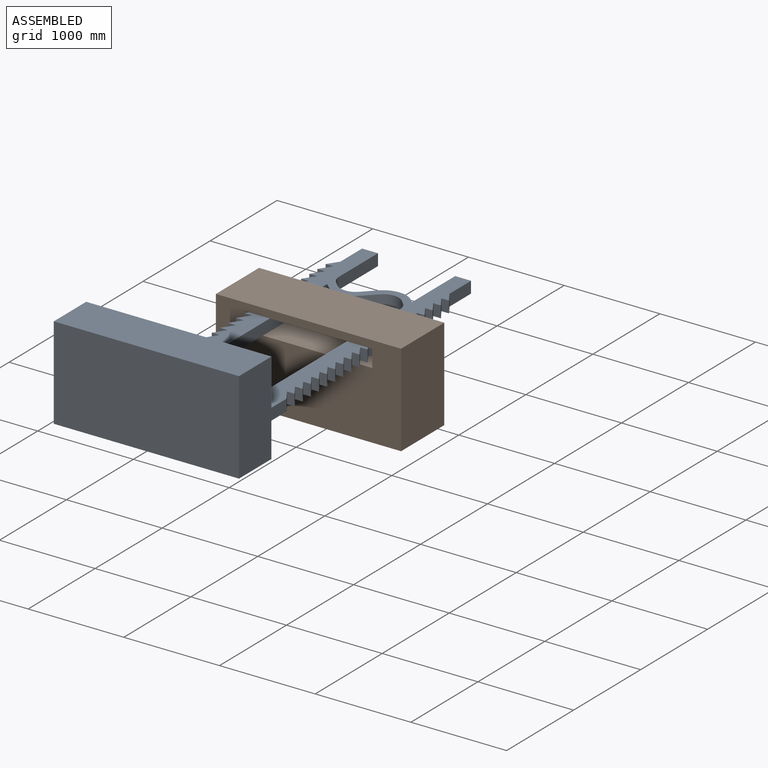
[diagram: assembled view]
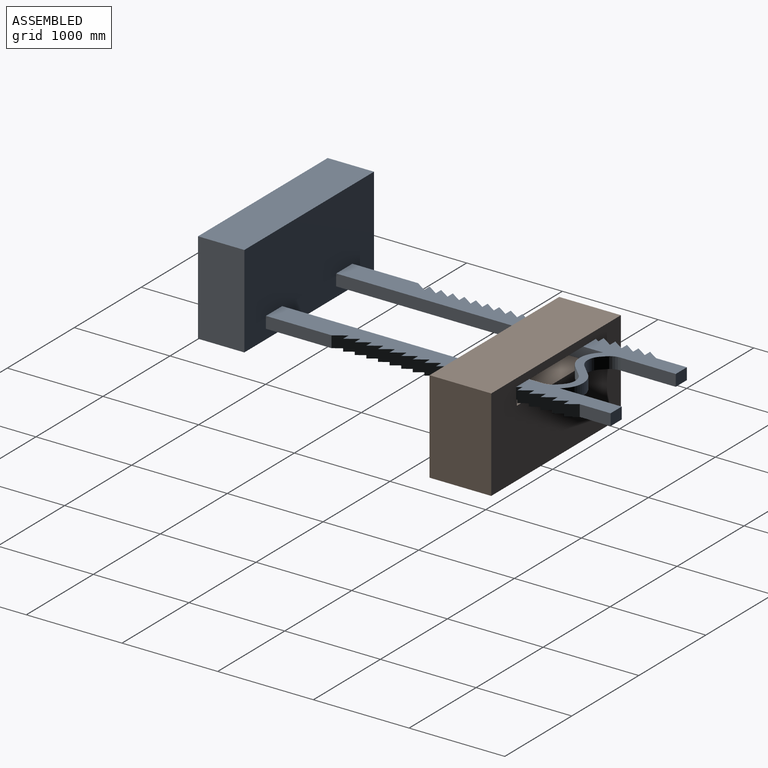
[diagram: assembled view, second angle]
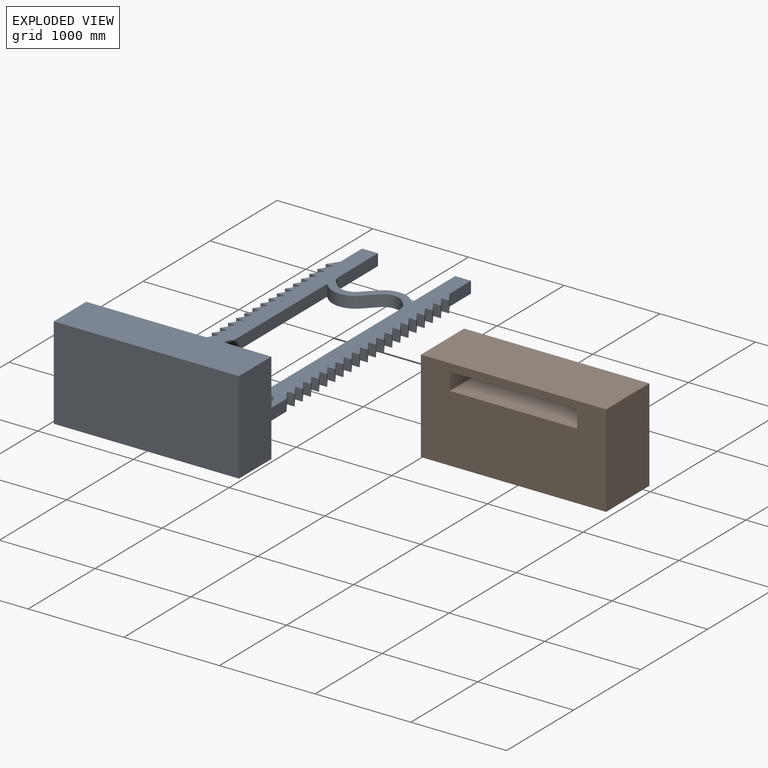
[diagram: exploded view]
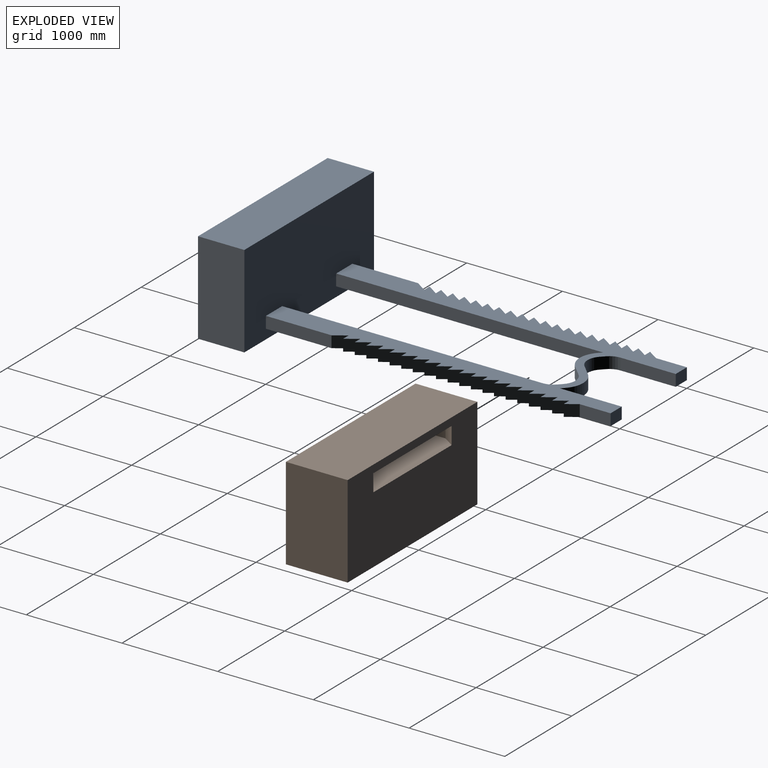
[diagram: exploded view, second angle]
ASSEMBLY  parts=2 mates=2
PART A: 112 faces, bbox 1935.5x4032.3x967.7 mm
  f0: plane 1935.48x483.87mm, normal (0,0,1), area 936520.7mm2, adj f102,f104,f105,f106
  f1: plane 578.35x121.29mm, normal (1,0,0), area 70148.3mm2, adj f11,f101,f109,f111
  f2: plane 645.16x121.29mm, normal (-1,0,0), area 78251.5mm2, adj f7,f101,f110,f111
  f3: plane 2789.17x121.29mm, normal (1,0,0), area 338298.7mm2, adj f10,f101,f105,f111
  f4: plane 2722.36x121.29mm, normal (-1,0,0), area 330195.5mm2, adj f13,f101,f105,f111
  f5: plane 121.29x40.32mm, normal (0.71,-0.71,0), area 6916.5mm2, adj f11,f12,f101,f111
  f6: plane 121.29x118.1mm, normal (-0.71,-0.71,0), area 20258mm2, adj f12,f101,f107,f111
  f7: plane 121.29x30.54mm, normal (0.71,-0.71,0), area 5238.3mm2, adj f2,f101,f107,f111
  f8: plane 121.29x40.32mm, normal (-0.71,0.71,0), area 6916.5mm2, adj f13,f14,f101,f111
  f9: plane 121.29x118.1mm, normal (0.71,0.71,0), area 20258mm2, adj f14,f101,f108,f111
  f10: plane 121.29x30.54mm, normal (-0.71,0.71,0), area 5238.3mm2, adj f3,f101,f108,f111
  f11: cylinder r=161.29mm len=121.29mm, axis (0,0,-1), area 15364.6mm2, adj f1,f5,f101,f111
  f12: cylinder r=161.29mm len=228.1mm, axis (0,0,-1), area 30729.3mm2, adj f5,f6,f101,f111
  f13: cylinder r=161.29mm len=121.29mm, axis (0,0,1), area 15364.6mm2, adj f4,f8,f101,f111
  f14: cylinder r=161.29mm len=228.1mm, axis (0,0,-1), area 30729.3mm2, adj f8,f9,f101,f111
  f15: plane 121.29x121.29mm, normal (0.83,-0.55,0), area 17666.3mm2, adj f16,f93,f101,f111
  f16: plane 121.29x80.65mm, normal (0,1,0), area 9781.4mm2, adj f15,f94,f101,f111
  f17: plane 121.29x121.29mm, normal (0.83,-0.55,0), area 17666.3mm2, adj f18,f89,f101,f111
  f18: plane 121.29x80.65mm, normal (0,1,0), area 9781.4mm2, adj f17,f90,f101,f111
  f19: plane 121.29x121.29mm, normal (0.83,-0.55,0), area 17666.3mm2, adj f20,f85,f101,f111
  f20: plane 121.29x80.65mm, normal (0,1,0), area 9781.4mm2, adj f19,f86,f101,f111
  f21: plane 121.29x121.29mm, normal (0.83,-0.55,0), area 17666.3mm2, adj f22,f81,f101,f111
  f22: plane 121.29x80.65mm, normal (0,1,0), area 9781.4mm2, adj f21,f82,f101,f111
  f23: plane 121.29x121.29mm, normal (-0.83,-0.55,0), area 17666.3mm2, adj f24,f76,f101,f111
  f24: plane 121.29x80.65mm, normal (0,1,0), area 9781.4mm2, adj f23,f55,f101,f111
  f25: plane 121.29x121.29mm, normal (-0.83,-0.55,0), area 17666.3mm2, adj f26,f56,f101,f111
  f26: plane 121.29x80.65mm, normal (0,1,0), area 9781.4mm2, adj f25,f57,f101,f111
  f27: plane 121.29x121.29mm, normal (-0.83,-0.55,0), area 17666.3mm2, adj f28,f58,f101,f111
  f28: plane 121.29x80.65mm, normal (0,1,0), area 9781.4mm2, adj f27,f59,f101,f111
  f29: plane 121.29x121.29mm, normal (-0.83,-0.55,0), area 17666.3mm2, adj f30,f60,f101,f111
  f30: plane 121.29x80.65mm, normal (0,1,0), area 9781.4mm2, adj f29,f61,f101,f111
  f31: plane 121.29x121.29mm, normal (-0.83,-0.55,0), area 17666.3mm2, adj f32,f62,f101,f111
  f32: plane 121.29x80.65mm, normal (0,1,0), area 9781.4mm2, adj f31,f63,f101,f111
  f33: plane 121.29x121.29mm, normal (-0.83,-0.55,0), area 17666.3mm2, adj f34,f64,f101,f111
  f34: plane 121.29x80.65mm, normal (0,1,0), area 9781.4mm2, adj f33,f65,f101,f111
  f35: plane 121.29x121.29mm, normal (-0.83,-0.55,0), area 17666.3mm2, adj f36,f66,f101,f111
  f36: plane 121.29x80.65mm, normal (0,1,0), area 9781.4mm2, adj f35,f67,f101,f111
  f37: plane 121.29x121.29mm, normal (-0.83,-0.55,0), area 17666.3mm2, adj f38,f68,f101,f111
  f38: plane 121.29x80.65mm, normal (0,1,0), area 9781.4mm2, adj f37,f69,f101,f111
  f39: plane 121.29x121.29mm, normal (-0.83,-0.55,0), area 17666.3mm2, adj f40,f70,f101,f111
  f40: plane 121.29x80.65mm, normal (0,1,0), area 9781.4mm2, adj f39,f71,f101,f111
  f41: plane 121.29x121.29mm, normal (-0.83,-0.55,0), area 17666.3mm2, adj f42,f72,f101,f111
  f42: plane 121.29x80.65mm, normal (0,1,0), area 9781.4mm2, adj f41,f77,f101,f111
  f43: plane 121.29x121.29mm, normal (0.83,-0.55,0), area 17666.3mm2, adj f44,f74,f101,f111
  f44: plane 121.29x80.65mm, normal (0,1,0), area 9781.4mm2, adj f43,f78,f101,f111
  f45: plane 121.29x121.29mm, normal (0.83,-0.55,0), area 17666.3mm2, adj f46,f79,f101,f111
  f46: plane 121.29x80.65mm, normal (0,1,0), area 9781.4mm2, adj f45,f80,f101,f111
  f47: plane 121.29x121.29mm, normal (0.83,-0.55,0), area 17666.3mm2, adj f48,f83,f101,f111
  f48: plane 121.29x80.65mm, normal (0,1,0), area 9781.4mm2, adj f47,f84,f101,f111
  f49: plane 121.29x121.29mm, normal (0.83,-0.55,0), area 17666.3mm2, adj f50,f87,f101,f111
  f50: plane 121.29x80.65mm, normal (0,1,0), area 9781.4mm2, adj f49,f88,f101,f111
  f51: plane 121.29x121.29mm, normal (0.83,-0.55,0), area 17666.3mm2, adj f52,f91,f101,f111
  f52: plane 121.29x80.65mm, normal (0,1,0), area 9781.4mm2, adj f51,f92,f101,f111
  f53: plane 121.29x121.29mm, normal (0.83,-0.55,0), area 17666.3mm2, adj f54,f95,f101,f111
  f54: plane 121.29x80.65mm, normal (0,1,0), area 9781.4mm2, adj f53,f96,f101,f111
  f55: plane 121.29x121.29mm, normal (-0.83,-0.55,0), area 17666.3mm2, adj f24,f56,f101,f111
  f56: plane 121.29x80.65mm, normal (0,1,0), area 9781.4mm2, adj f25,f55,f101,f111
  f57: plane 121.29x121.29mm, normal (-0.83,-0.55,0), area 17666.3mm2, adj f26,f58,f101,f111
  f58: plane 121.29x80.65mm, normal (0,1,0), area 9781.4mm2, adj f27,f57,f101,f111
  f59: plane 121.29x121.29mm, normal (-0.83,-0.55,0), area 17666.3mm2, adj f28,f60,f101,f111
  f60: plane 121.29x80.65mm, normal (0,1,0), area 9781.4mm2, adj f29,f59,f101,f111
  f61: plane 121.29x121.29mm, normal (-0.83,-0.55,0), area 17666.3mm2, adj f30,f62,f101,f111
  f62: plane 121.29x80.65mm, normal (0,1,0), area 9781.4mm2, adj f31,f61,f101,f111
  f63: plane 121.29x121.29mm, normal (-0.83,-0.55,0), area 17666.3mm2, adj f32,f64,f101,f111
  f64: plane 121.29x80.65mm, normal (0,1,0), area 9781.4mm2, adj f33,f63,f101,f111
  f65: plane 121.29x121.29mm, normal (-0.83,-0.55,0), area 17666.3mm2, adj f34,f66,f101,f111
  f66: plane 121.29x80.65mm, normal (0,1,0), area 9781.4mm2, adj f35,f65,f101,f111
  f67: plane 121.29x121.29mm, normal (-0.83,-0.55,0), area 17666.3mm2, adj f36,f68,f101,f111
  f68: plane 121.29x80.65mm, normal (0,1,0), area 9781.4mm2, adj f37,f67,f101,f111
  f69: plane 121.29x121.29mm, normal (-0.83,-0.55,0), area 17666.3mm2, adj f38,f70,f101,f111
  f70: plane 121.29x80.65mm, normal (0,1,0), area 9781.4mm2, adj f39,f69,f101,f111
  f71: plane 121.29x121.29mm, normal (-0.83,-0.55,0), area 17666.3mm2, adj f40,f72,f101,f111
  f72: plane 121.29x80.65mm, normal (0,1,0), area 9781.4mm2, adj f41,f71,f101,f111
  f73: plane 121.29x121.29mm, normal (0.83,-0.55,0), area 17666.3mm2, adj f74,f100,f101,f111
  f74: plane 121.29x80.65mm, normal (0,1,0), area 9781.4mm2, adj f43,f73,f101,f111
  f75: plane 121.29x121.29mm, normal (-0.83,-0.55,0), area 17666.3mm2, adj f76,f99,f101,f111
  f76: plane 121.29x80.65mm, normal (0,1,0), area 9781.4mm2, adj f23,f75,f101,f111
  f77: plane 121.29x114.2mm, normal (-0.83,-0.55,0), area 16633.4mm2, adj f42,f97,f101,f111
  f78: plane 121.29x121.29mm, normal (0.83,-0.55,0), area 17666.3mm2, adj f44,f79,f101,f111
  f79: plane 121.29x80.65mm, normal (0,1,0), area 9781.4mm2, adj f45,f78,f101,f111
  f80: plane 121.29x121.29mm, normal (0.83,-0.55,0), area 17666.3mm2, adj f46,f81,f101,f111
  f81: plane 121.29x80.65mm, normal (0,1,0), area 9781.4mm2, adj f21,f80,f101,f111
  f82: plane 121.29x121.29mm, normal (0.83,-0.55,0), area 17666.3mm2, adj f22,f83,f101,f111
  f83: plane 121.29x80.65mm, normal (0,1,0), area 9781.4mm2, adj f47,f82,f101,f111
  f84: plane 121.29x121.29mm, normal (0.83,-0.55,0), area 17666.3mm2, adj f48,f85,f101,f111
  f85: plane 121.29x80.65mm, normal (0,1,0), area 9781.4mm2, adj f19,f84,f101,f111
  f86: plane 121.29x121.29mm, normal (0.83,-0.55,0), area 17666.3mm2, adj f20,f87,f101,f111
  f87: plane 121.29x80.65mm, normal (0,1,0), area 9781.4mm2, adj f49,f86,f101,f111
  f88: plane 121.29x121.29mm, normal (0.83,-0.55,0), area 17666.3mm2, adj f50,f89,f101,f111
  f89: plane 121.29x80.65mm, normal (0,1,0), area 9781.4mm2, adj f17,f88,f101,f111
  f90: plane 121.29x121.29mm, normal (0.83,-0.55,0), area 17666.3mm2, adj f18,f91,f101,f111
  f91: plane 121.29x80.65mm, normal (0,1,0), area 9781.4mm2, adj f51,f90,f101,f111
  f92: plane 121.29x121.29mm, normal (0.83,-0.55,0), area 17666.3mm2, adj f52,f93,f101,f111
  f93: plane 121.29x80.65mm, normal (0,1,0), area 9781.4mm2, adj f15,f92,f101,f111
  f94: plane 121.29x121.29mm, normal (0.83,-0.55,0), area 17666.3mm2, adj f16,f95,f101,f111
  f95: plane 121.29x80.65mm, normal (0,1,0), area 9781.4mm2, adj f53,f94,f101,f111
  f96: plane 121.29x114.2mm, normal (0.83,-0.55,0), area 16633.4mm2, adj f54,f98,f101,f111
  f97: plane 322.58x121.29mm, normal (-1,0,0), area 39125.8mm2, adj f77,f101,f109,f111
  f98: plane 322.58x121.29mm, normal (1,0,0), area 39125.8mm2, adj f96,f101,f110,f111
  f99: plane 685.8x121.29mm, normal (-1,0,0), area 83180.7mm2, adj f75,f101,f105,f111
  f100: plane 685.8x121.29mm, normal (1,0,0), area 83180.7mm2, adj f73,f101,f105,f111
  f101: plane 3548.38x1290.32mm, normal (0,0,-1), area 1542805.5mm2, adj f1,f2,f3,f4,f5,f6,f7,f8
  f102: plane 967.74x483.87mm, normal (-1,0,0), area 468260.4mm2, adj f0,f103,f105,f106
  f103: plane 1935.48x483.87mm, normal (0,0,-1), area 936520.7mm2, adj f102,f104,f105,f106
  f104: plane 967.74x483.87mm, normal (1,0,0), area 468260.4mm2, adj f0,f103,f105,f106
  f105: plane 1935.48x967.74mm, normal (0,-1,0), area 1814352.8mm2, adj f0,f3,f4,f99,f100,f101,f102,f103
  f106: plane 1935.48x967.74mm, normal (0,1,0), area 1873041.4mm2, adj f0,f102,f103,f104
  f107: cylinder r=241.94mm len=342.15mm, axis (0,0,1), area 46093.9mm2, adj f6,f7,f101,f111
  f108: cylinder r=241.94mm len=342.15mm, axis (0,0,1), area 46093.9mm2, adj f9,f10,f101,f111
  f109: plane 166.01x121.29mm, normal (0,-1,0), area 20134.8mm2, adj f1,f97,f101,f111
  f110: plane 166.01x121.29mm, normal (0,-1,0), area 20134.8mm2, adj f2,f98,f101,f111
  f111: plane 3548.38x1290.32mm, normal (0,0,1), area 1542805.5mm2, adj f1,f2,f3,f4,f5,f6,f7,f8
PART B: 12 faces, bbox 1935.5x645.2x967.7 mm
  f0: plane 1330.32x645.16mm, normal (0,0,-1), area 848487.8mm2, adj f6,f7,f8,f9,f10,f11
  f1: plane 1330.32x645.16mm, normal (0,0,1), area 848487.8mm2, adj f6,f7,f8,f9,f10,f11
  f2: plane 967.74x645.16mm, normal (-1,0,0), area 624347.1mm2, adj f3,f5,f6,f7
  f3: plane 1935.48x645.16mm, normal (0,0,-1), area 1248694.3mm2, adj f2,f4,f6,f7
  f4: plane 967.74x645.16mm, normal (1,0,0), area 624347.1mm2, adj f3,f5,f6,f7
  f5: plane 1935.48x645.16mm, normal (0,0,1), area 1248694.3mm2, adj f2,f4,f6,f7
  f6: plane 1935.48x967.74mm, normal (0,-1,0), area 1661108mm2, adj f0,f1,f2,f3,f4,f5,f10,f11
  f7: plane 1935.48x967.74mm, normal (0,1,0), area 1631867.8mm2, adj f0,f1,f2,f3,f4,f5,f8,f9
  f8: plane 523.87x181.29mm, normal (1,0,0), area 94972.4mm2, adj f0,f1,f7,f10
  f9: plane 523.87x181.29mm, normal (-1,0,0), area 94972.4mm2, adj f0,f1,f7,f11
  f10: plane 181.29x121.29mm, normal (0.83,0.55,0), area 26405.5mm2, adj f0,f1,f6,f8
  f11: plane 181.29x121.29mm, normal (-0.83,0.55,0), area 26405.5mm2, adj f0,f1,f6,f9
PLACE A rot(axis=(1,0,0),180deg) t=(-96.7,-96.49,-15.06)mm fixed
PLACE B rot(axis=(0,0,1),180deg) t=(-96.7,2322.37,-680.22)mm
MATE planar A.f104 <-> B.f2  axis (1,0,0) through (871.04,-96.49,468.81)mm
MATE planar A.f101 <-> B.f0  axis (0,0,1) through (467.82,3498.98,-277)mm
